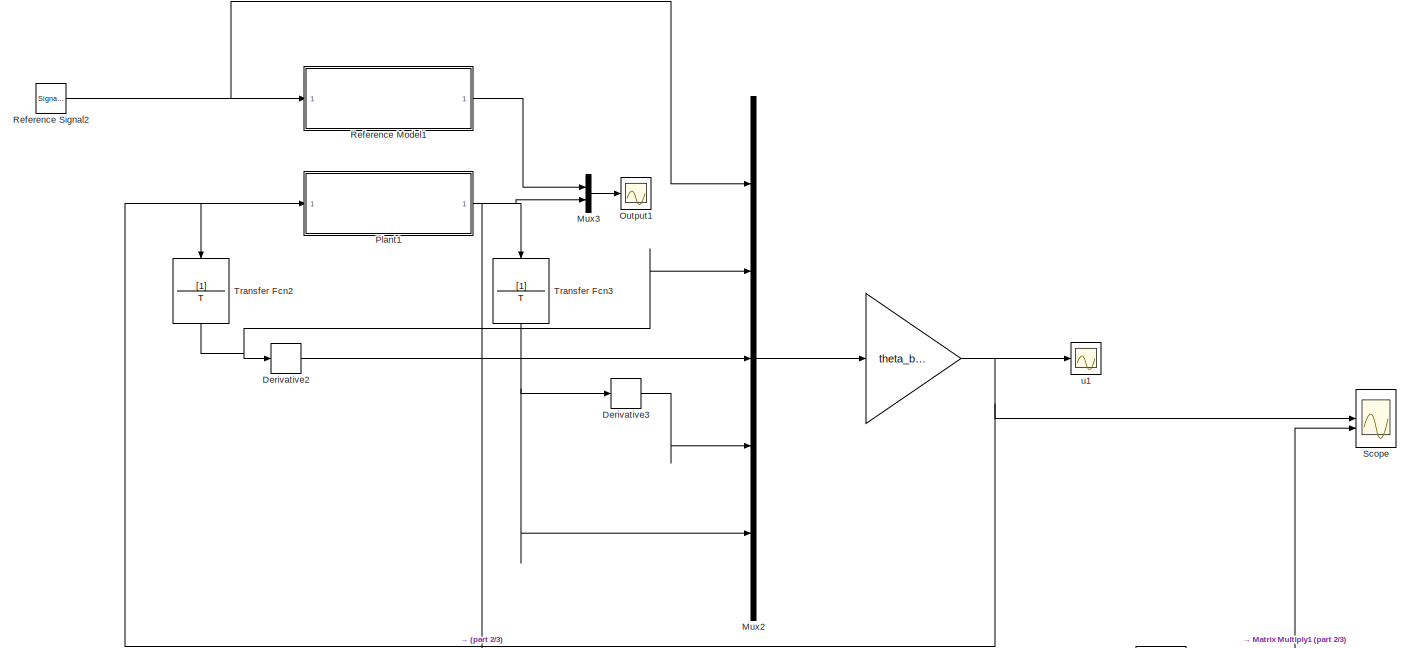
[diagram: root canvas - part 1/3, full width, top band]
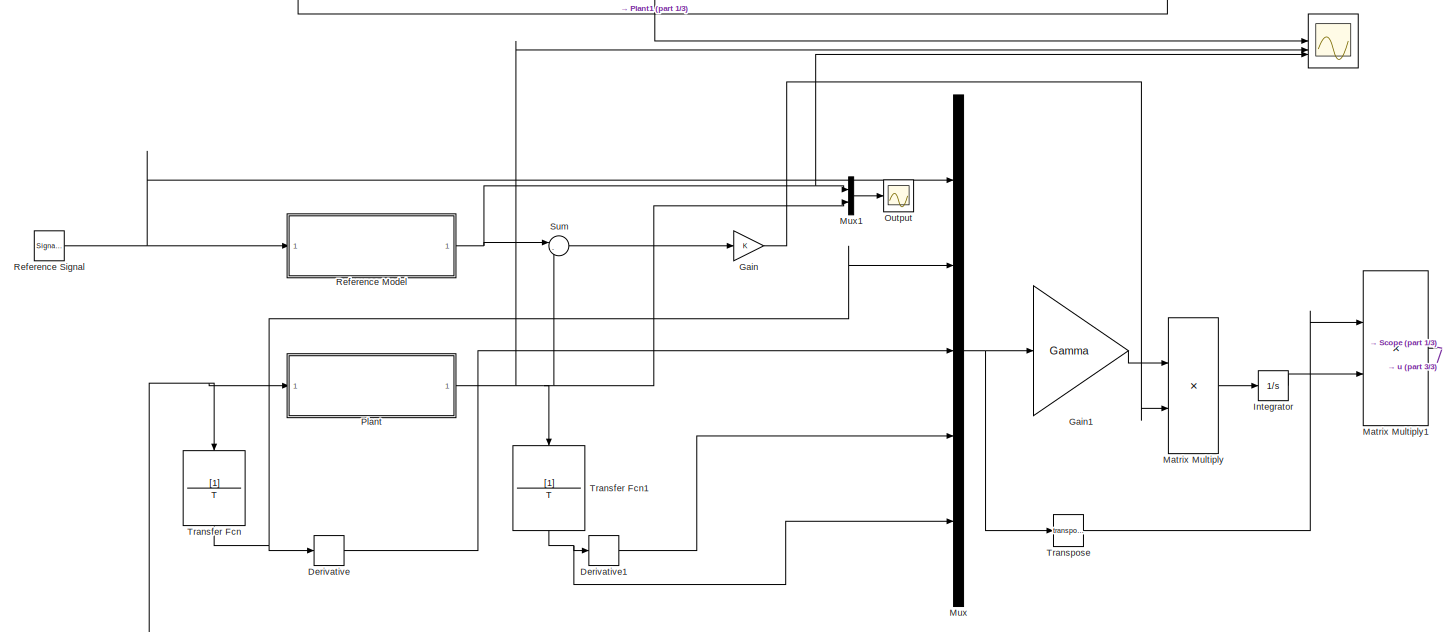
[diagram: root canvas - part 2/3, full width, bottom band]
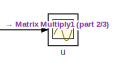
[diagram: root canvas - part 3/3, bottom right region]
MODEL slx_d17903acb485
KIND model
CONFIG AbsTol = auto
CONFIG EnableMultiTasking = off
CONFIG FixedStep = auto
CONFIG MaxStep = auto
CONFIG MinStep = auto
CONFIG RelTol = 1e-3
CONFIG SampleTimeConstraint = Unconstrained
CONFIG SolverName = VariableStepAuto
CONFIG StartTime = 0.0
CONFIG StopTime = 50
BLOCK [Scope]  
  Floating = off
  NumInputPorts = 3
  ScopeSpecificationString = Simulink.scopes.TimeScopeBlockCfg('CurrentConfiguration', extmgr.ConfigurationSet(extmgr.Configuration('Core','General UI',true,'FigureColor',[1 1 1]),extmgr.Configuration('Core','Source UI',true),extmgr.Configuration('Sources','WiredSimulink',true,'DataLoggingVariableName','ScopeData4'),extmgr.Configuration('Visuals','Time Domain',true,'SerializedDisplays',{struct('MinYLimReal','-10','MaxYLimReal...<+1828ch>
BLOCK [Gain]   
  Gain = theta_bar_star
  Multiplication = Matrix(K*u) (u vector)
  NameLocation = top
BLOCK [Derivative] Derivative
BLOCK [Derivative] Derivative1
BLOCK [Derivative] Derivative2
BLOCK [Derivative] Derivative3
BLOCK [Gain] Gain
BLOCK [Gain] Gain1
  Gain = Gamma
  Multiplication = Matrix(K*u)
BLOCK [Integrator] Integrator
BLOCK [Product] Matrix Multiply
  Multiplication = Matrix(*)
BLOCK [Product] Matrix Multiply1
  Multiplication = Matrix(*)
BLOCK [Mux] Mux
  DisplayOption = bar
  Inputs = 5
BLOCK [Mux] Mux1
  DisplayOption = bar
  Inputs = 2
BLOCK [Mux] Mux2
  DisplayOption = bar
  Inputs = 5
BLOCK [Mux] Mux3
  DisplayOption = bar
  Inputs = 2
BLOCK [Scope] Output
  Floating = off
  NumInputPorts = 1
  ScopeSpecificationString = Simulink.scopes.TimeScopeBlockCfg('CurrentConfiguration', extmgr.ConfigurationSet(extmgr.Configuration('Core','General UI',true),extmgr.Configuration('Core','Source UI',true),extmgr.Configuration('Sources','WiredSimulink',true,'DataLoggingVariableName','ScopeData1'),extmgr.Configuration('Visuals','Time Domain',true,'SerializedDisplays',{struct('MinYLimReal','-1.27967','MaxYLimReal','1.25457','YLab...<+1558ch>
BLOCK [Scope] Output1
  Floating = off
  NumInputPorts = 1
  ScopeSpecificationString = Simulink.scopes.TimeScopeBlockCfg('CurrentConfiguration', extmgr.ConfigurationSet(extmgr.Configuration('Core','General UI',true),extmgr.Configuration('Core','Source UI',true),extmgr.Configuration('Sources','WiredSimulink',true,'DataLoggingVariableName','ScopeData2'),extmgr.Configuration('Visuals','Time Domain',true,'SerializedDisplays',{struct('MinYLimReal','-1.27967','MaxYLimReal','1.25457','YLab...<+1645ch>
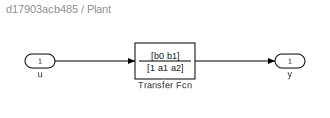
BLOCK [SubSystem] Plant
BLOCK [TransferFcn] Plant/Transfer Fcn
  Denominator = [1 a1 a2]
  Numerator = [b0 b1]
BLOCK [Inport] Plant/u
BLOCK [Outport] Plant/y
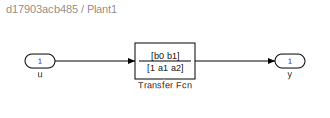
BLOCK [SubSystem] Plant1
BLOCK [TransferFcn] Plant1/Transfer Fcn
  Denominator = [1 a1 a2]
  Numerator = [b0 b1]
BLOCK [Inport] Plant1/u
BLOCK [Outport] Plant1/y
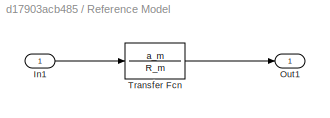
BLOCK [SubSystem] Reference Model
BLOCK [Inport] Reference Model/In1
BLOCK [Outport] Reference Model/Out1
BLOCK [TransferFcn] Reference Model/Transfer Fcn
  Denominator = R_m
  Numerator = a_m
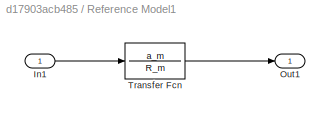
BLOCK [SubSystem] Reference Model1
BLOCK [Inport] Reference Model1/In1
BLOCK [Outport] Reference Model1/Out1
BLOCK [TransferFcn] Reference Model1/Transfer Fcn
  Denominator = R_m
  Numerator = a_m
BLOCK [SignalGenerator] Reference Signal
  Frequency = 0.5
  WaveForm = square
BLOCK [SignalGenerator] Reference Signal2
  Frequency = 0.5
  WaveForm = square
BLOCK [Scope] Scope
  Floating = off
  NumInputPorts = 2
  ScopeSpecificationString = Simulink.scopes.TimeScopeBlockCfg('CurrentConfiguration', extmgr.ConfigurationSet(extmgr.Configuration('Core','General UI',true,'FigureColor',[1 1 1]),extmgr.Configuration('Core','Source UI',true),extmgr.Configuration('Sources','WiredSimulink',true,'DataLoggingVariableName','ScopeData5'),extmgr.Configuration('Visuals','Time Domain',true,'SerializedDisplays',{struct('MinYLimReal','-47.02339','MaxYL...<+1698ch>
BLOCK [Sum] Sum
  Inputs = |-+
BLOCK [TransferFcn] Transfer Fcn
  Denominator = T
  NameLocation = left
BLOCK [TransferFcn] Transfer Fcn1
  Denominator = T
  NameLocation = left
BLOCK [TransferFcn] Transfer Fcn2
  Denominator = T
  NameLocation = left
BLOCK [TransferFcn] Transfer Fcn3
  Denominator = T
  NameLocation = left
BLOCK [Math] Transpose
  Operator = transpose
BLOCK [Scope] u
  Floating = off
  NumInputPorts = 1
  ScopeSpecificationString = Simulink.scopes.TimeScopeBlockCfg('CurrentConfiguration', extmgr.ConfigurationSet(extmgr.Configuration('Core','General UI',true),extmgr.Configuration('Core','Source UI',true),extmgr.Configuration('Sources','WiredSimulink',true,'DataLoggingVariableName','ScopeData1'),extmgr.Configuration('Visuals','Time Domain',true,'SerializedDisplays',{struct('MinYLimReal','-13.80139','MaxYLimReal','13.84099','YL...<+1411ch>
BLOCK [Scope] u1
  Floating = off
  NumInputPorts = 1
  ScopeSpecificationString = Simulink.scopes.TimeScopeBlockCfg('CurrentConfiguration', extmgr.ConfigurationSet(extmgr.Configuration('Core','General UI',true),extmgr.Configuration('Core','Source UI',true),extmgr.Configuration('Sources','WiredSimulink',true,'DataLoggingVariableName','ScopeData3'),extmgr.Configuration('Visuals','Time Domain',true,'SerializedDisplays',{struct('MinYLimReal','-12.1555','MaxYLimReal','12.53973','YLa...<+1393ch>
NET   :1 -> Plant1:1, Scope:1, Transfer Fcn2:1, u1:1
LINE Derivative1:1 -> Mux:4
LINE Derivative2:1 -> Mux2:3
LINE Derivative3:1 -> Mux2:4
LINE Derivative:1 -> Mux:3
LINE Gain1:1 -> Matrix Multiply:1
LINE Gain:1 -> Matrix Multiply:2
LINE Integrator:1 -> Matrix Multiply1:2
NET Matrix Multiply1:1 -> Plant:1, Scope:2, Transfer Fcn:1, u:1
LINE Matrix Multiply:1 -> Integrator:1
LINE Mux1:1 -> Output:1
LINE Mux2:1 ->   :1
LINE Mux3:1 -> Output1:1
NET Mux:1 -> Gain1:1, Transpose:1
LINE Plant/Transfer Fcn:1 -> Plant/y:1
LINE Plant/u:1 -> Plant/Transfer Fcn:1
LINE Plant1/Transfer Fcn:1 -> Plant1/y:1
LINE Plant1/u:1 -> Plant1/Transfer Fcn:1
NET Plant1:1 ->  :1, Mux3:2, Transfer Fcn3:1
NET Plant:1 ->  :2, Mux1:2, Sum:2, Transfer Fcn1:1
LINE Reference Model/In1:1 -> Reference Model/Transfer Fcn:1
LINE Reference Model/Transfer Fcn:1 -> Reference Model/Out1:1
LINE Reference Model1/In1:1 -> Reference Model1/Transfer Fcn:1
LINE Reference Model1/Transfer Fcn:1 -> Reference Model1/Out1:1
LINE Reference Model1:1 -> Mux3:1
NET Reference Model:1 ->  :3, Mux1:1, Sum:1
NET Reference Signal2:1 -> Mux2:1, Reference Model1:1
NET Reference Signal:1 -> Mux:1, Reference Model:1
LINE Sum:1 -> Gain:1
NET Transfer Fcn1:1 -> Derivative1:1, Mux:5
NET Transfer Fcn2:1 -> Derivative2:1, Mux2:2
NET Transfer Fcn3:1 -> Derivative3:1, Mux2:5
NET Transfer Fcn:1 -> Derivative:1, Mux:2
LINE Transpose:1 -> Matrix Multiply1:1
note: NET lines group one-source signal fan-out (src -> all destinations, sorted); 1:1 wires keep LINE
